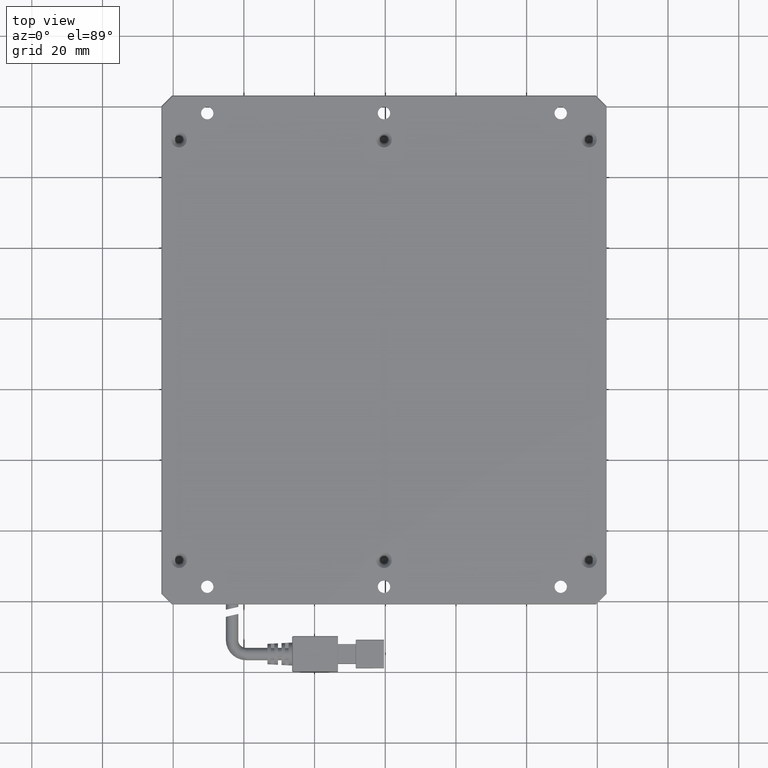
[diagram: clean part render]
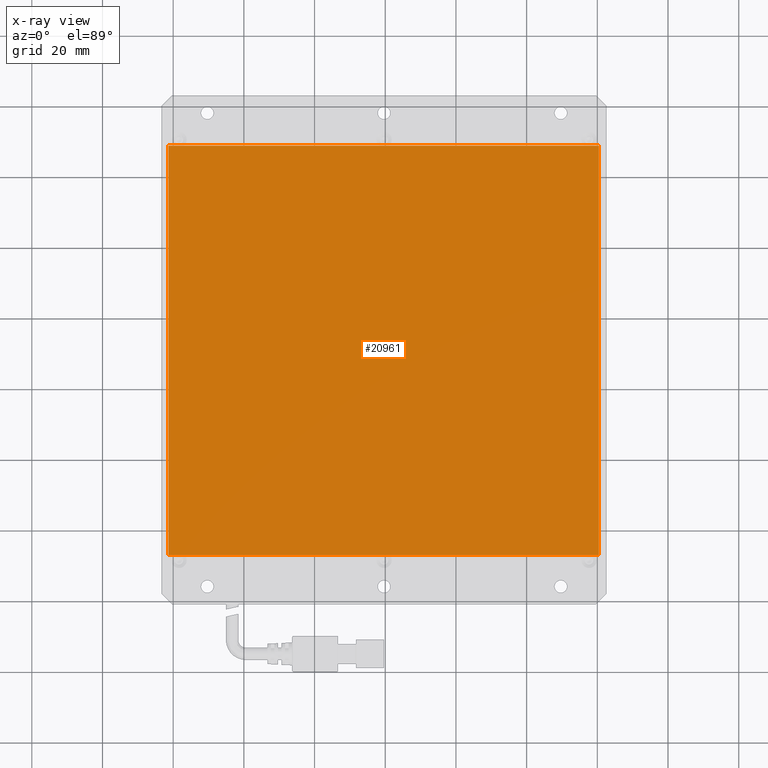
[diagram: x-ray — body ghosted, one internal face saturated and labeled with its STEP entity id]
A machine part, top view, then the same camera in x-ray: the body is ghosted and one INTERNAL B-rep face — a face not visible from any outside direction — is saturated and labeled: STEP entity #20961.
In plain terms, the highlighted planar face has unit normal (0, 0, 1).
Its self-contained STEP definition (entity closure, byte-faithful):
#4767 = VECTOR ( 'NONE', #11485, 1000.000000000000000 ) ;
#6276 = CARTESIAN_POINT ( 'NONE',  ( -61.35509736540658600, -47.11034746086287600, 13.99999999998362900 ) ) ;
#11485 = DIRECTION ( 'NONE',  ( 2.220446049250312600E-016, -1.000000000000000000, -0.0000000000000000000 ) ) ;
#14102 = DIRECTION ( 'NONE',  ( -2.220446049250312600E-016, 1.000000000000000000, 0.0000000000000000000 ) ) ;
#15932 = DIRECTION ( 'NONE',  ( -1.000000000000000000, -2.220446049250312600E-016, 0.0000000000000000000 ) ) ;
#20961 = ADVANCED_FACE ( 'NONE', ( #100434 ), #21664, .T. ) ;
#21664 = PLANE ( 'NONE',  #62095 ) ;
#22178 = CARTESIAN_POINT ( 'NONE',  ( 60.44490263459339000, 68.68965253913712800, 13.99999999998362900 ) ) ;
#23581 = LINE ( 'NONE', #70279, #65065 ) ;
#29459 = EDGE_CURVE ( 'NONE', #82673, #93757, #58131, .T. ) ;
#30148 = LINE ( 'NONE', #70582, #43573 ) ;
#37404 = VECTOR ( 'NONE', #88402, 1000.000000000000000 ) ;
#42187 = VERTEX_POINT ( 'NONE', #22178 ) ;
#43573 = VECTOR ( 'NONE', #15932, 1000.000000000000000 ) ;
#47716 = EDGE_CURVE ( 'NONE', #93757, #42187, #23581, .T. ) ;
#49318 = ORIENTED_EDGE ( 'NONE', *, *, #51895, .T. ) ;
#51895 = EDGE_CURVE ( 'NONE', #71715, #82673, #67019, .T. ) ;
#56091 = CARTESIAN_POINT ( 'NONE',  ( 60.44490263459341900, -47.11034746086287600, 13.99999999998362900 ) ) ;
#58131 = LINE ( 'NONE', #80530, #37404 ) ;
#59374 = ORIENTED_EDGE ( 'NONE', *, *, #70619, .T. ) ;
#60459 = ORIENTED_EDGE ( 'NONE', *, *, #47716, .T. ) ;
#60902 = DIRECTION ( 'NONE',  ( 0.0000000000000000000, 0.0000000000000000000, 1.000000000000000000 ) ) ;
#61818 = CARTESIAN_POINT ( 'NONE',  ( -61.35509736540661400, 68.68965253913710000, 13.99999999998362900 ) ) ;
#62095 = AXIS2_PLACEMENT_3D ( 'NONE', #6276, #60902, #14102 ) ;
#65065 = VECTOR ( 'NONE', #78113, 1000.000000000000000 ) ;
#66103 = CARTESIAN_POINT ( 'NONE',  ( -61.35509736540658600, -47.11034746086287600, 13.99999999998362900 ) ) ;
#67019 = LINE ( 'NONE', #66103, #4767 ) ;
#70279 = CARTESIAN_POINT ( 'NONE',  ( 60.44490263459341900, -47.11034746086284700, 13.99999999998362900 ) ) ;
#70582 = CARTESIAN_POINT ( 'NONE',  ( -61.35509736540661400, 68.68965253913710000, 13.99999999998362900 ) ) ;
#70619 = EDGE_CURVE ( 'NONE', #42187, #71715, #30148, .T. ) ;
#71548 = ORIENTED_EDGE ( 'NONE', *, *, #29459, .T. ) ;
#71715 = VERTEX_POINT ( 'NONE', #61818 ) ;
#78113 = DIRECTION ( 'NONE',  ( -2.220446049250312600E-016, 1.000000000000000000, 0.0000000000000000000 ) ) ;
#80530 = CARTESIAN_POINT ( 'NONE',  ( -61.35509736540658600, -47.11034746086289700, 13.99999999998362900 ) ) ;
#82673 = VERTEX_POINT ( 'NONE', #90764 ) ;
#83415 = EDGE_LOOP ( 'NONE', ( #59374, #49318, #71548, #60459 ) ) ;
#88402 = DIRECTION ( 'NONE',  ( 1.000000000000000000, 2.220446049250312600E-016, -0.0000000000000000000 ) ) ;
#90764 = CARTESIAN_POINT ( 'NONE',  ( -61.35509736540658600, -47.11034746086289700, 13.99999999998362900 ) ) ;
#93757 = VERTEX_POINT ( 'NONE', #56091 ) ;
#100434 = FACE_OUTER_BOUND ( 'NONE', #83415, .T. ) ;